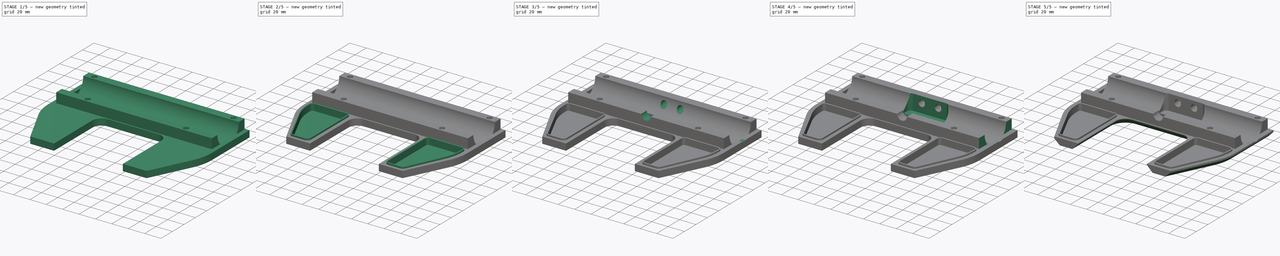
[diagram: build sequence overview — one tinted view per stage of 5, left to right]
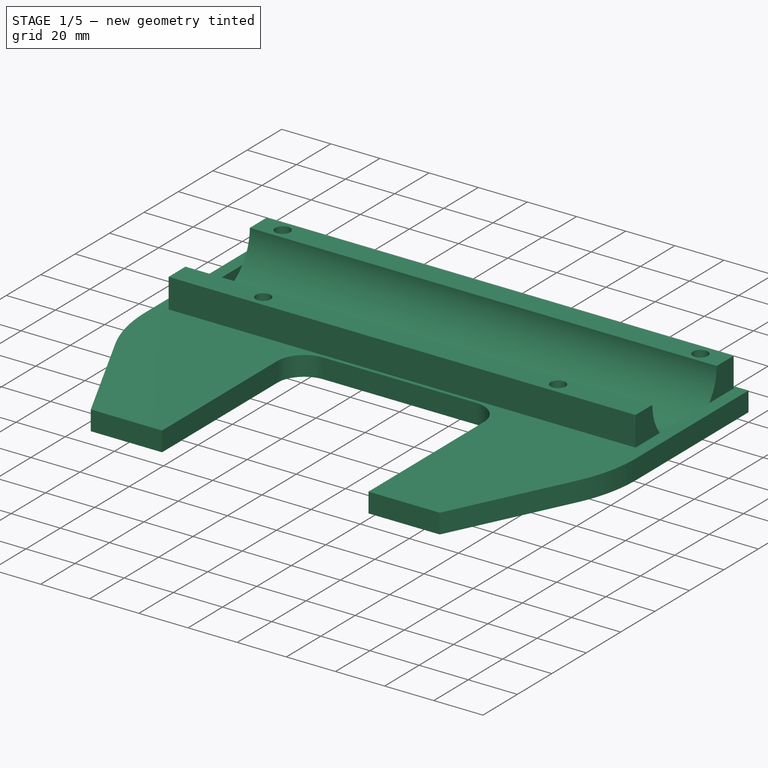
[diagram: stage 1 of 5 — iso view after this stage's code; geometry added in this stage tinted green]
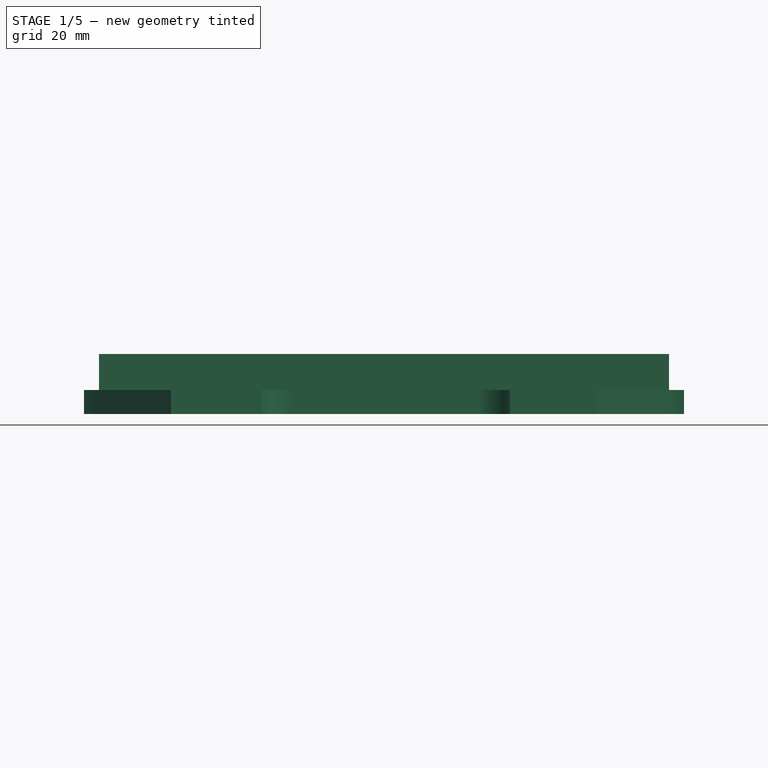
[diagram: stage 1 of 5 — front view after this stage's code; geometry added in this stage tinted green]
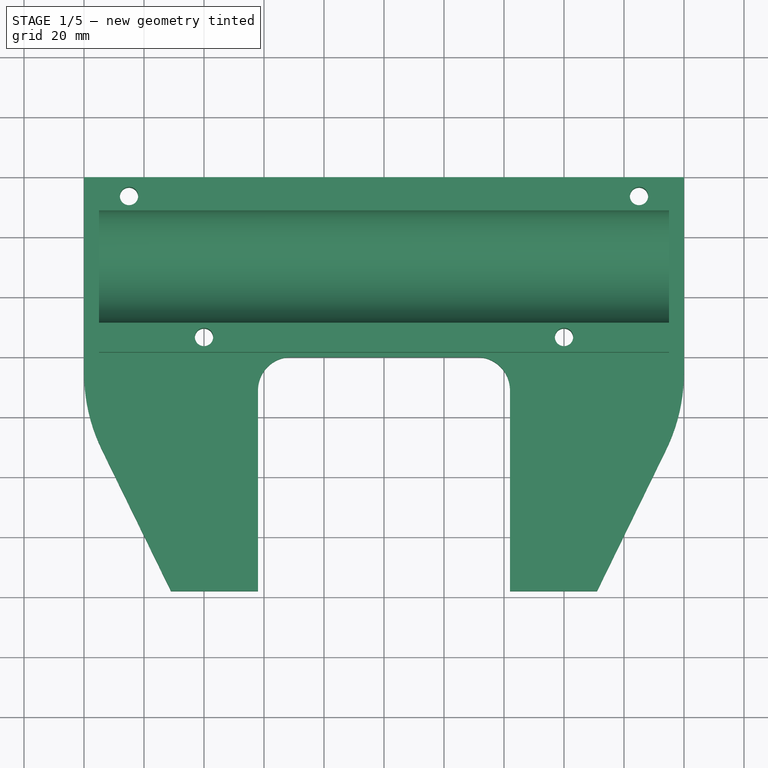
[diagram: stage 1 of 5 — top view after this stage's code; geometry added in this stage tinted green]
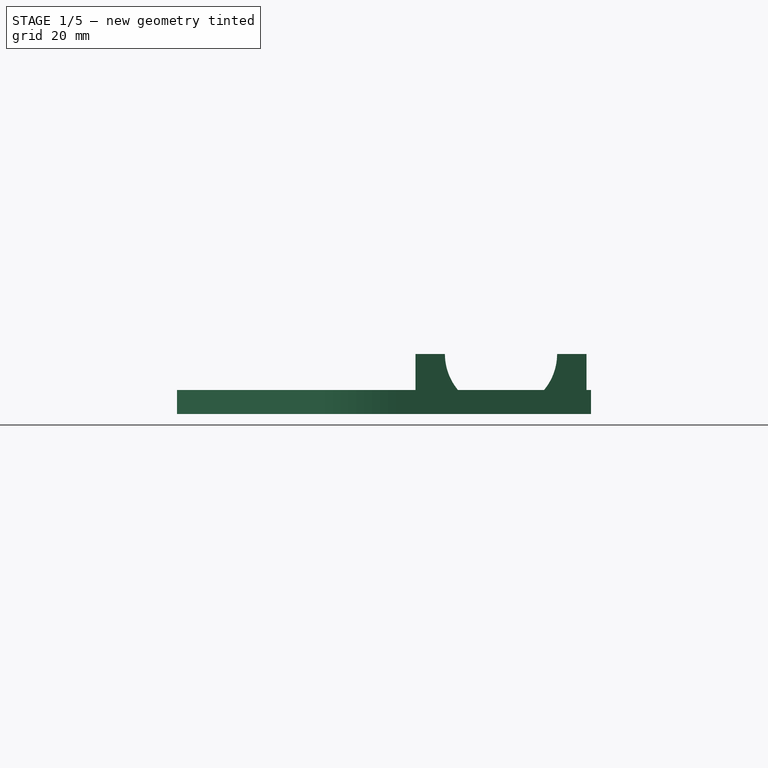
[diagram: stage 1 of 5 — right view after this stage's code; geometry added in this stage tinted green]
FCSTD DOCUMENT  (FreeCAD 0.20R)
Label: T07_motorcover
License: All rights reserved
LicenseURL: http://en.wikipedia.org/wiki/All_rights_reserved
objects: Sketcher::SketchObject×12, PartDesign::Pocket×9, PartDesign::Pad×3, PartDesign::Chamfer×3, PartDesign::Body×1
note: 43 computed .brp shape members not serialized (recipe doc carries the construction recipe); baked Part::Feature solids carry a one-line shape summary decoded from their .brp

FEATURE [Sketcher::SketchObject] Sketch055
  FullyConstrained = true
  MapMode = 5
  Placement = pos=(0,0,0) rot=(0.57735,0.57735,0.57735;2.0944rad)
  Support = -> [YZ_Plane025]
  sketch-geometry (6):
    g0: LineSegment StartX=38.5 StartY=17 StartZ=0 EndX=38.5 EndY=-3 EndZ=0
    g1: LineSegment StartX=38.5 StartY=-3 StartZ=0 EndX=-18.5 EndY=-3 EndZ=0
    g2: LineSegment StartX=-18.5 StartY=-3 StartZ=0 EndX=-18.5 EndY=17 EndZ=0
    g3: ArcOfCircle CenterX=10 CenterY=17 CenterZ=0 NormalX=0 NormalY=0 NormalZ=1 AngleXU=0 Radius=18.7 StartAngle=3.14159 EndAngle=6.28319
    g4: LineSegment StartX=38.5 StartY=17 StartZ=0 EndX=28.7 EndY=17 EndZ=0
    g5: LineSegment StartX=-18.5 StartY=17 StartZ=0 EndX=-8.7 EndY=17 EndZ=0
  constraints (19):
    c: Coincident(g0,g1)
    c: Coincident(g1,g2)
    c: Horizontal(g1)
    c: Vertical(g0)
    c: Vertical(g2)
    c: Distance(g1) = 57
    c: Distance(g2) = 20
    c: DistanceX(g1,g-1) = 18.5
    c: DistanceY(g1,g-1) = 3
    c: Coincident(g5,g3)
    c: Coincident(g5,g2)
    c: Coincident(g4,g3)
    c: Coincident(g0,g4)
    c: DistanceY(g3,g0) = 0
    c: DistanceY(g0,g0) = 20
    c: Parallel(g4,g1)
    c: Parallel(g5,g1)
    c: Distance(g4) = 9.8
    c: Distance(g5) = 9.8
FEATURE [PartDesign::Pad] Pad009
  AllowMultiFace = false
  Direction = (1,-2e-16,3e-16)
  Length = 190
  Length2 = 100
  Midplane = true
  Placement = pos=(0,0,0) rot=(0.57735,0.57735,0.57735;2.0944rad)
  Profile = -> Sketch055
  ReferenceAxis = -> Sketch055 [N_Axis]
  Type = 0
FEATURE [Sketcher::SketchObject] Sketch056
  FullyConstrained = true
  MapMode = 5
  Placement = pos=(8e-16,-1.3e-15,-3) rot=(0.707107,0.707107,0;3.14159rad)
  Support = -> [Pad009]
  sketch-geometry (4):
    g0: Circle CenterX=-13.5 CenterY=60 CenterZ=0 NormalX=0 NormalY=0 NormalZ=1 AngleXU=0 Radius=3.05
    g1: Circle CenterX=33.5 CenterY=85 CenterZ=0 NormalX=0 NormalY=0 NormalZ=1 AngleXU=0 Radius=3.05
    g2: Circle CenterX=-13.5 CenterY=-60 CenterZ=0 NormalX=0 NormalY=0 NormalZ=1 AngleXU=0 Radius=3.05
    g3: Circle CenterX=33.5 CenterY=-85 CenterZ=0 NormalX=0 NormalY=0 NormalZ=1 AngleXU=0 Radius=3.05
  constraints (10):
    c: DistanceX(g0,g1) = 47
    c: DistanceY(g0,g1) = 25
    c: DistanceY(g-1,g0) = 60
    c: DistanceX(g0,g-1) = 13.5
    c: Equal(g0,g1)
    c: Equal(g1,g3)
    c: Equal(g3,g2)
    c: Symmetric(g0,g2,g-1)
    c: Symmetric(g1,g3,g-1)
    c: Diameter(g1) = 6.1
FEATURE [Sketcher::SketchObject] Sketch
  FullyConstrained = true
  MapMode = 5
  Support = -> [XY_Plane025]
  sketch-geometry (18):
    g0: LineSegment StartX=-100 StartY=-25 StartZ=0 EndX=-100 EndY=40 EndZ=0
    g1: LineSegment StartX=-100 StartY=40 StartZ=0 EndX=100 EndY=40 EndZ=0
    g2: LineSegment StartX=100 StartY=40 StartZ=0 EndX=100 EndY=-25 EndZ=0
    g3: LineSegment StartX=-31 StartY=-20 StartZ=0 EndX=31 EndY=-20 EndZ=0
    g4: ArcOfCircle CenterX=-41 CenterY=-25 CenterZ=0 NormalX=0 NormalY=0 NormalZ=1 AngleXU=0 Radius=59 StartAngle=3.14159 EndAngle=3.59605
    g5: ArcOfCircle CenterX=41 CenterY=-25 CenterZ=0 NormalX=0 NormalY=0 NormalZ=1 AngleXU=0 Radius=59 StartAngle=5.82873 EndAngle=6.28319
    g6: ArcOfCircle CenterX=-31 CenterY=-31 CenterZ=0 NormalX=0 NormalY=0 NormalZ=1 AngleXU=0 Radius=11 StartAngle=1.5708 EndAngle=3.14159
    g7: ArcOfCircle CenterX=31 CenterY=-31 CenterZ=0 NormalX=0 NormalY=0 NormalZ=1 AngleXU=0 Radius=11 StartAngle=0 EndAngle=1.5708
    g8: LineSegment StartX=-94.0115 StartY=-50.8994 StartZ=0 EndX=-71 EndY=-98 EndZ=0
    g9: LineSegment StartX=-71 StartY=-98 StartZ=0 EndX=-42 EndY=-98 EndZ=0
    g10: LineSegment StartX=-42 StartY=-98 StartZ=0 EndX=-42 EndY=-31 EndZ=0
    g11: LineSegment StartX=94.0115 StartY=-50.8994 StartZ=0 EndX=71 EndY=-98 EndZ=0
    g12: LineSegment StartX=71 StartY=-98 StartZ=0 EndX=42 EndY=-98 EndZ=0
    g13: LineSegment StartX=42 StartY=-98 StartZ=0 EndX=42 EndY=-31 EndZ=0
    g14: LineSegment StartX=-95 StartY=38.5 StartZ=0 EndX=95 EndY=38.5 EndZ=0
    g15: LineSegment StartX=95 StartY=38.5 StartZ=0 EndX=95 EndY=-18.5 EndZ=0
    g16: LineSegment StartX=95 StartY=-18.5 StartZ=0 EndX=-95 EndY=-18.5 EndZ=0
    g17: LineSegment StartX=-95 StartY=-18.5 StartZ=0 EndX=-95 EndY=38.5 EndZ=0
  constraints (46):
    c: Vertical(g0)
    c: Coincident(g0,g1)
    c: Coincident(g1,g2)
    c: Coincident(g5,g2)
    c: Coincident(g7,g3)
    c: Tangent(g4,g8) = -1.5708
    c: Coincident(g8,g9)
    c: Coincident(g9,g10)
    c: Coincident(g11,g12)
    c: Coincident(g12,g13)
    c: Coincident(g13,g7)
    c: Tangent(g4,g0) = 1.5708
    c: Vertical(g10)
    c: Horizontal(g9)
    c: Tangent(g6,g3) = 1.5708
    c: Tangent(g10,g6) = 1.5708
    c: Symmetric(g12,g9,g-2)
    c: Symmetric(g8,g11,g-2)
    c: Symmetric(g0,g2,g-2)
    c: Symmetric(g4,g5,g-2)
    c: Symmetric(g6,g7,g-2)
    c: Symmetric(g3,g3,g-2)
    c: Symmetric(g1,g0,g-2)
    c: Equal(g4,g5)
    c: Equal(g6,g7)
    c: DistanceY(g9,g-1) = 98
    c: DistanceX(g0,g-1) = 100
    c: DistanceY(g-1,g0) = 40
    c: DistanceX(g6,g-1) = 42
    c: Radius(g6) = 11
    c: Radius(g4) = 59
    c: Coincident(g11,g5)
    c: DistanceY(g0,g-1) = 25
    c: DistanceY(g3,g-1) = 20
    c: DistanceX(g8,g-1) = 71
    c: Coincident(g14,g15)
    c: Coincident(g15,g16)
    c: Coincident(g16,g17)
    c: Coincident(g17,g14)
    c: Horizontal(g16)
    c: Vertical(g15)
    c: Vertical(g17)
    c: Symmetric(g14,g14,g-2)
    c: DistanceX(g14,g14) = 190
    c: DistanceY(g-1,g14) = 38.5
    c: DistanceY(g16,g14) = 57
FEATURE [PartDesign::Pad] Pad
  BaseFeature = -> Pad009
  Direction = (0,0,1)
  Length = 5
  Length2 = 3
  Placement = pos=(0,0,0) rot=(0.57735,0.57735,0.57735;2.0944rad)
  Profile = -> Sketch
  ReferenceAxis = -> Sketch [N_Axis]
  Type = 4
FEATURE [PartDesign::Pocket] Pocket043
  AllowMultiFace = false
  BaseFeature = -> Pad
  Direction = (-3e-16,4e-16,1)
  Length = 5
  Length2 = 100
  Placement = pos=(0,0,0) rot=(0.57735,0.57735,0.57735;2.0944rad)
  Profile = -> Sketch056
  ReferenceAxis = -> Sketch056 [N_Axis]
  Type = 1
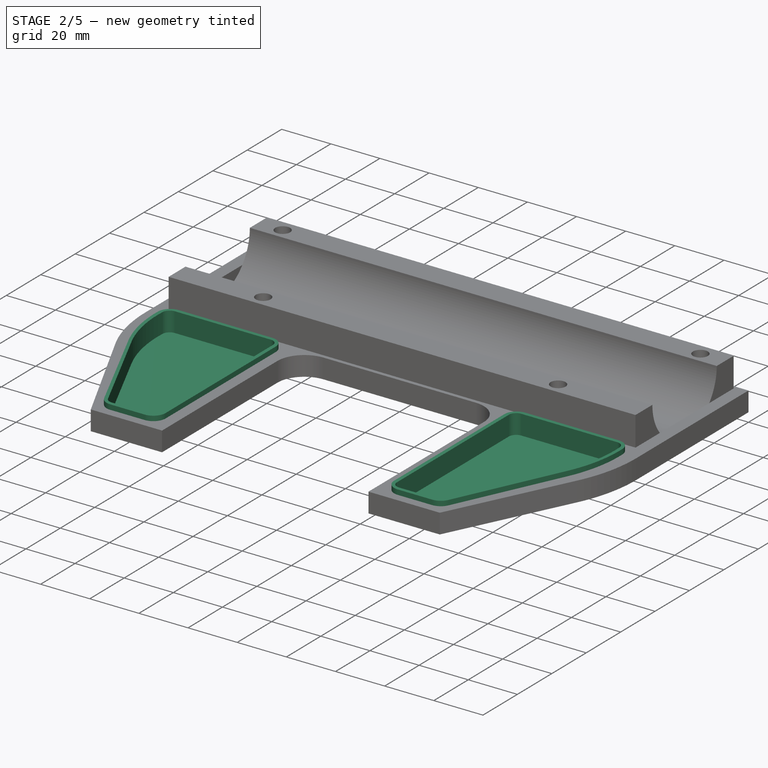
[diagram: stage 2 of 5 — iso view after this stage's code; geometry added in this stage tinted green]
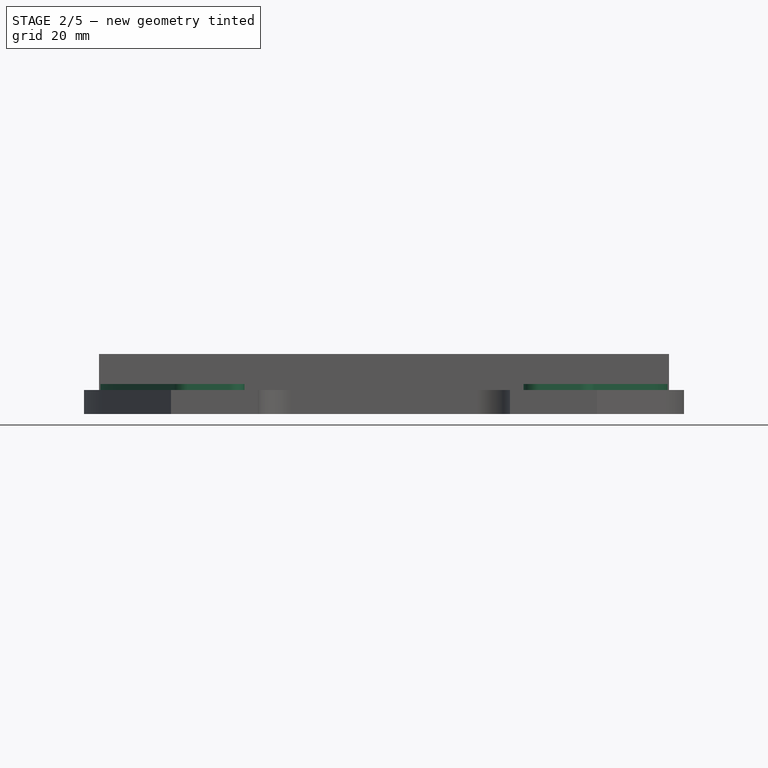
[diagram: stage 2 of 5 — front view after this stage's code; geometry added in this stage tinted green]
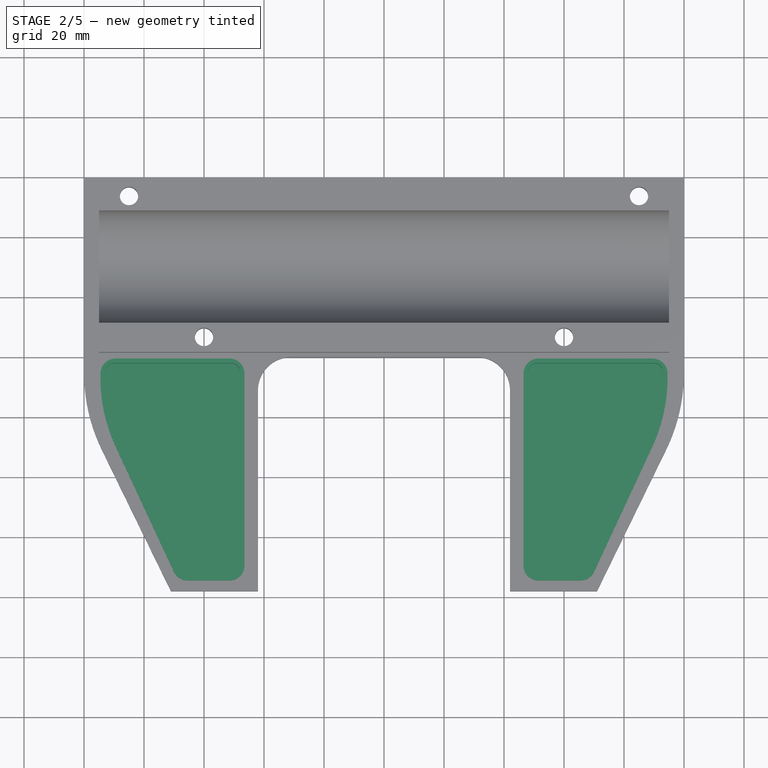
[diagram: stage 2 of 5 — top view after this stage's code; geometry added in this stage tinted green]
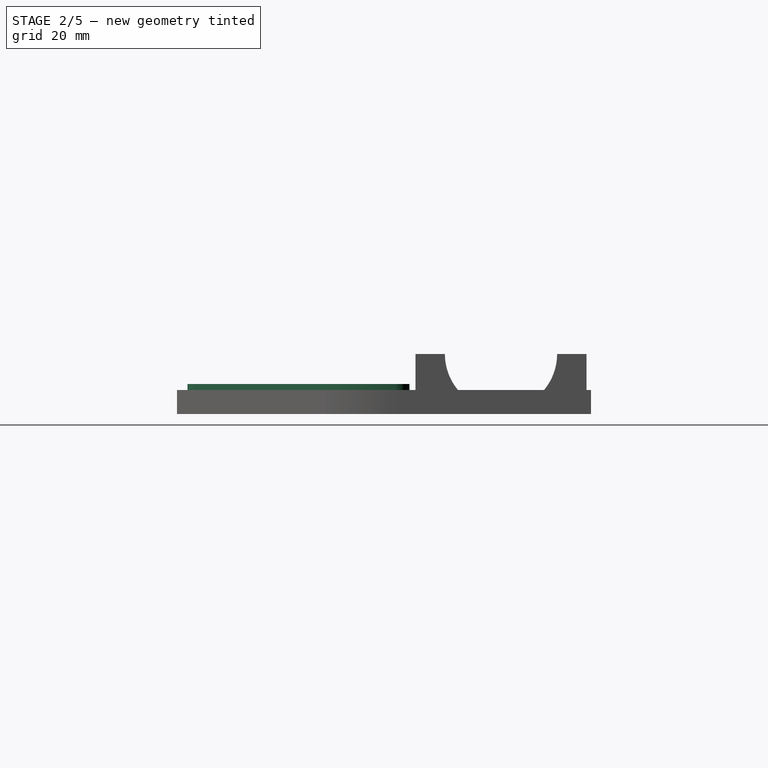
[diagram: stage 2 of 5 — right view after this stage's code; geometry added in this stage tinted green]
FEATURE [Sketcher::SketchObject] Sketch060
  FullyConstrained = true
  MapMode = 5
  Placement = pos=(8e-16,-1.7e-15,-3) rot=(0.707107,0.707107,0;3.14159rad)
  Support = -> [Pocket043]
  sketch-geometry (4):
    g0: Circle CenterX=-13.5 CenterY=60 CenterZ=0 NormalX=0 NormalY=0 NormalZ=1 AngleXU=0 Radius=6
    g1: Circle CenterX=33.5 CenterY=85 CenterZ=0 NormalX=0 NormalY=0 NormalZ=1 AngleXU=0 Radius=6
    g2: Circle CenterX=-13.5 CenterY=-60 CenterZ=0 NormalX=0 NormalY=0 NormalZ=1 AngleXU=0 Radius=6
    g3: Circle CenterX=33.5 CenterY=-85 CenterZ=0 NormalX=0 NormalY=0 NormalZ=1 AngleXU=0 Radius=6
  constraints (10):
    c: Symmetric(g0,g2,g-1)
    c: Symmetric(g1,g3,g-1)
    c: DistanceX(g0,g1) = 47
    c: DistanceX(g0,g-1) = 13.5
    c: DistanceY(g1,g0) = -25
    c: Equal(g0,g1)
    c: Equal(g0,g2)
    c: Equal(g2,g3)
    c: DistanceY(g-1,g0) = 60
    c: Diameter(g0) = 12
FEATURE [PartDesign::Pocket] Pocket
  BaseFeature = -> Pocket043
  Direction = (-3e-16,6e-16,1)
  Length = 5
  Length2 = 5
  Placement = pos=(0,0,0) rot=(0.57735,0.57735,0.57735;2.0944rad)
  Profile = -> Sketch060
  ReferenceAxis = -> Sketch060 [N_Axis]
  Type = 0
FEATURE [Sketcher::SketchObject] Sketch062
  FullyConstrained = true
  MapMode = 5
  Placement = pos=(0,1.1e-15,5) rot=(0,0,-1;1.5708rad)
  Support = -> [Pocket]
  sketch-geometry (18):
    g0: ArcOfCircle CenterX=25.5 CenterY=89.5017 CenterZ=0 NormalX=0 NormalY=0 NormalZ=1 AngleXU=0 Radius=5 StartAngle=1.59687 EndAngle=3.14159
    g1: ArcOfCircle CenterX=25.5 CenterY=51.5 CenterZ=0 NormalX=0 NormalY=0 NormalZ=1 AngleXU=0 Radius=5 StartAngle=3.14159 EndAngle=4.71239
    g2: ArcOfCircle CenterX=89.5 CenterY=51.5 CenterZ=0 NormalX=0 NormalY=0 NormalZ=1 AngleXU=0 Radius=5 StartAngle=4.71239 EndAngle=6.28319
    g3: ArcOfCircle CenterX=89.5 CenterY=65.5 CenterZ=0 NormalX=0 NormalY=0 NormalZ=1 AngleXU=0 Radius=5 StartAngle=-1.8e-15 EndAngle=1.13542
    g4: ArcOfCircle CenterX=26.8035 CenterY=39.5187 CenterZ=0 NormalX=0 NormalY=0 NormalZ=1 AngleXU=0 Radius=55 StartAngle=1.13542 EndAngle=1.59687
    g5: LineSegment StartX=20.5 StartY=51.5 StartZ=0 EndX=20.5 EndY=89.5017 EndZ=0
    g6: LineSegment StartX=50 StartY=89.3878 StartZ=0 EndX=91.6088 EndY=70.0336 EndZ=0
    g7: LineSegment StartX=94.5 StartY=65.5 StartZ=0 EndX=94.5 EndY=51.5 EndZ=0
    g8: LineSegment StartX=89.5 StartY=46.5 StartZ=0 EndX=25.5 EndY=46.5 EndZ=0
    g9: ArcOfCircle CenterX=25.5 CenterY=-89.5017 CenterZ=0 NormalX=0 NormalY=0 NormalZ=1 AngleXU=0 Radius=5 StartAngle=3.14159 EndAngle=4.68632
    g10: ArcOfCircle CenterX=26.8035 CenterY=-39.5187 CenterZ=0 NormalX=0 NormalY=0 NormalZ=1 AngleXU=0 Radius=55 StartAngle=4.68632 EndAngle=5.14777
    g11: ArcOfCircle CenterX=25.5 CenterY=-51.5 CenterZ=0 NormalX=0 NormalY=0 NormalZ=1 AngleXU=0 Radius=5 StartAngle=1.5708 EndAngle=3.14159
    g12: ArcOfCircle CenterX=89.5 CenterY=-65.5 CenterZ=0 NormalX=0 NormalY=0 NormalZ=1 AngleXU=0 Radius=5 StartAngle=5.14777 EndAngle=6.28319
    g13: ArcOfCircle CenterX=89.5 CenterY=-51.5 CenterZ=0 NormalX=0 NormalY=0 NormalZ=1 AngleXU=0 Radius=5 StartAngle=3e-16 EndAngle=1.5708
    g14: LineSegment StartX=20.5 StartY=-51.5 StartZ=0 EndX=20.5 EndY=-89.5017 EndZ=0
    g15: LineSegment StartX=50 StartY=-89.3878 StartZ=0 EndX=91.6088 EndY=-70.0336 EndZ=0
    g16: LineSegment StartX=94.5 StartY=-65.5 StartZ=0 EndX=94.5 EndY=-51.5 EndZ=0
    g17: LineSegment StartX=89.5 StartY=-46.5 StartZ=0 EndX=25.5 EndY=-46.5 EndZ=0
  constraints (42):
    c: Vertical(g5)
    c: Horizontal(g8)
    c: Tangent(g5,g0) = 1.5708
    c: Tangent(g5,g1) = 1.5708
    c: Tangent(g8,g1) = 1.5708
    c: Tangent(g8,g2) = 1.5708
    c: Tangent(g7,g2) = 1.5708
    c: Tangent(g7,g3) = 1.5708
    c: Tangent(g6,g3) = 1.5708
    c: Tangent(g4,g0) = -1.5708
    c: Tangent(g6,g4) = 1.5708
    c: Equal(g0,g1)
    c: Equal(g1,g2)
    c: Equal(g2,g3)
    c: Vertical(g7)
    c: Radius(g2) = 5
    c: Radius(g4) = 55
    c: DistanceY(g-1,g1) = 46.5
    c: DistanceY(g-1,g0) = 94.5
    c: DistanceY(g1,g3) = 19
    c: DistanceX(g-1,g3) = 94.5
    c: DistanceX(g-1,g1) = 20.5
    c: DistanceX(g-1,g4) = 50
    c: Horizontal(g17)
    c: Tangent(g17,g11) = -1.5708
    c: Tangent(g14,g11) = -1.5708
    c: Tangent(g17,g13) = -1.5708
    c: Tangent(g16,g13) = -1.5708
    c: Tangent(g16,g12) = -1.5708
    c: Tangent(g15,g12) = -1.5708
    c: Tangent(g14,g9) = -1.5708
    c: Tangent(g10,g9) = -1.5708
    c: Tangent(g15,g10) = -1.5708
    c: Equal(g11,g13)
    c: Equal(g13,g12)
    c: Equal(g11,g9)
    c: Equal(g10,g4)
    c: Equal(g11,g1)
    c: Symmetric(g11,g1,g-1)
    c: Symmetric(g13,g2,g-1)
    c: Symmetric(g3,g12,g-1)
    c: Symmetric(g9,g0,g-1)
FEATURE [PartDesign::Pad] Pad010
  BaseFeature = -> Pocket
  Direction = (0,2e-16,1)
  Length = 2
  Length2 = 10
  Placement = pos=(0,0,0) rot=(0.57735,0.57735,0.57735;2.0944rad)
  Profile = -> Sketch062
  ReferenceAxis = -> Sketch062 [N_Axis]
  Type = 0
FEATURE [Sketcher::SketchObject] Sketch063
  FullyConstrained = true
  MapMode = 5
  Placement = pos=(0,2.3e-15,7) rot=(0,0,-1;1.5708rad)
  Support = -> [Pad010]
  sketch-geometry (18):
    g0: ArcOfCircle CenterX=25 CenterY=90.0038 CenterZ=0 NormalX=0 NormalY=0 NormalZ=1 AngleXU=0 Radius=3 StartAngle=1.62101 EndAngle=3.14159
    g1: ArcOfCircle CenterX=25 CenterY=51 CenterZ=0 NormalX=0 NormalY=0 NormalZ=1 AngleXU=0 Radius=3 StartAngle=3.14159 EndAngle=4.71239
    g2: ArcOfCircle CenterX=90 CenterY=51 CenterZ=0 NormalX=0 NormalY=0 NormalZ=1 AngleXU=0 Radius=3 StartAngle=4.71239 EndAngle=6.28319
    g3: ArcOfCircle CenterX=90 CenterY=66 CenterZ=0 NormalX=0 NormalY=0 NormalZ=1 AngleXU=0 Radius=3 StartAngle=-1.359e-13 EndAngle=1.13256
    g4: ArcOfCircle CenterX=27.5097 CenterY=40.0668 CenterZ=0 NormalX=0 NormalY=0 NormalZ=1 AngleXU=0 Radius=53 StartAngle=1.13256 EndAngle=1.62101
    g5: LineSegment StartX=22 StartY=90.0038 StartZ=0 EndX=22 EndY=51 EndZ=0
    g6: LineSegment StartX=25 StartY=48 StartZ=0 EndX=90 EndY=48 EndZ=0
    g7: LineSegment StartX=93 StartY=51 StartZ=0 EndX=93 EndY=66 EndZ=0
    g8: LineSegment StartX=91.273 StartY=68.7165 StartZ=0 EndX=50 EndY=88.0583 EndZ=0
    g9: ArcOfCircle CenterX=25 CenterY=-51 CenterZ=0 NormalX=0 NormalY=0 NormalZ=1 AngleXU=0 Radius=3 StartAngle=1.5708 EndAngle=3.14159
    g10: ArcOfCircle CenterX=25 CenterY=-90.0038 CenterZ=0 NormalX=0 NormalY=0 NormalZ=1 AngleXU=0 Radius=3 StartAngle=3.14159 EndAngle=4.66217
    g11: ArcOfCircle CenterX=27.5097 CenterY=-40.0668 CenterZ=0 NormalX=0 NormalY=0 NormalZ=1 AngleXU=0 Radius=53 StartAngle=4.66217 EndAngle=5.15063
    g12: ArcOfCircle CenterX=90 CenterY=-66 CenterZ=0 NormalX=0 NormalY=0 NormalZ=1 AngleXU=0 Radius=3 StartAngle=5.15063 EndAngle=6.28319
    g13: ArcOfCircle CenterX=90 CenterY=-51 CenterZ=0 NormalX=0 NormalY=0 NormalZ=1 AngleXU=0 Radius=3 StartAngle=1e-16 EndAngle=1.5708
    g14: LineSegment StartX=22 StartY=-51 StartZ=0 EndX=22 EndY=-90.0038 EndZ=0
    g15: LineSegment StartX=50 StartY=-88.0583 StartZ=0 EndX=91.273 EndY=-68.7165 EndZ=0
    g16: LineSegment StartX=93 StartY=-66 StartZ=0 EndX=93 EndY=-51 EndZ=0
    g17: LineSegment StartX=90 StartY=-48 StartZ=0 EndX=25 EndY=-48 EndZ=0
  constraints (43):
    c: Vertical(g5)
    c: Horizontal(g6)
    c: Tangent(g6,g1) = -1.5708
    c: Tangent(g5,g1) = -1.5708
    c: Tangent(g5,g0) = -1.5708
    c: Tangent(g4,g0) = -1.5708
    c: Tangent(g8,g4) = -1.5708
    c: Tangent(g8,g3) = -1.5708
    c: Tangent(g7,g3) = -1.5708
    c: Tangent(g7,g2) = -1.5708
    c: Tangent(g6,g2) = -1.5708
    c: Vertical(g7)
    c: Equal(g0,g1)
    c: Equal(g1,g2)
    c: Equal(g2,g3)
    c: Radius(g1) = 3
    c: Radius(g4) = 53
    c: DistanceY(g-1,g1) = 48
    c: DistanceY(g2,g3) = 18
    c: DistanceY(g-1,g0) = 93
    c: DistanceX(g-1,g2) = 93
    c: DistanceX(g-1,g1) = 22
    c: DistanceX(g-1,g4) = 50
    c: Vertical(g14)
    c: Horizontal(g17)
    c: Vertical(g16)
    c: Tangent(g17,g9) = -1.5708
    c: Tangent(g14,g9) = -1.5708
    c: Tangent(g17,g13) = -1.5708
    c: Tangent(g16,g13) = -1.5708
    c: Tangent(g16,g12) = -1.5708
    c: Tangent(g15,g12) = -1.5708
    c: Tangent(g14,g10) = -1.5708
    c: Tangent(g11,g10) = -1.5708
    c: Tangent(g15,g11) = -1.5708
    c: Equal(g9,g10)
    c: Equal(g9,g13)
    c: Equal(g13,g12)
    c: Equal(g9,g1)
    c: Equal(g11,g4)
    c: Symmetric(g1,g9,g-1)
    c: Symmetric(g11,g4,g-1)
    c: Symmetric(g12,g3,g-1)
FEATURE [PartDesign::Pocket] Pocket044
  BaseFeature = -> Pad010
  Direction = (0,-3e-16,-1)
  Length = 8
  Length2 = 5
  Placement = pos=(0,0,0) rot=(0.57735,0.57735,0.57735;2.0944rad)
  Profile = -> Sketch063
  ReferenceAxis = -> Sketch063 [N_Axis]
  Type = 0
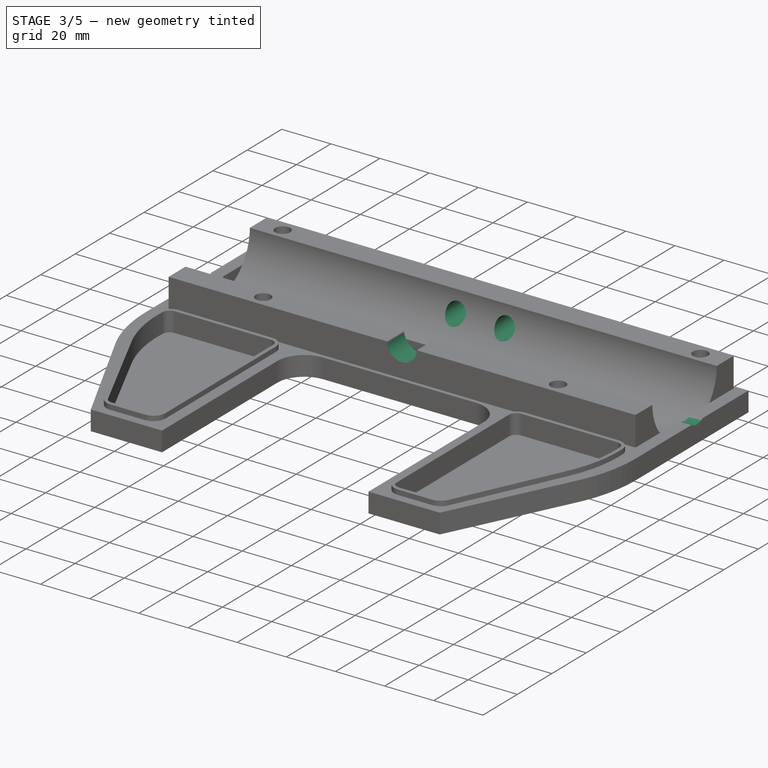
[diagram: stage 3 of 5 — iso view after this stage's code; geometry added in this stage tinted green]
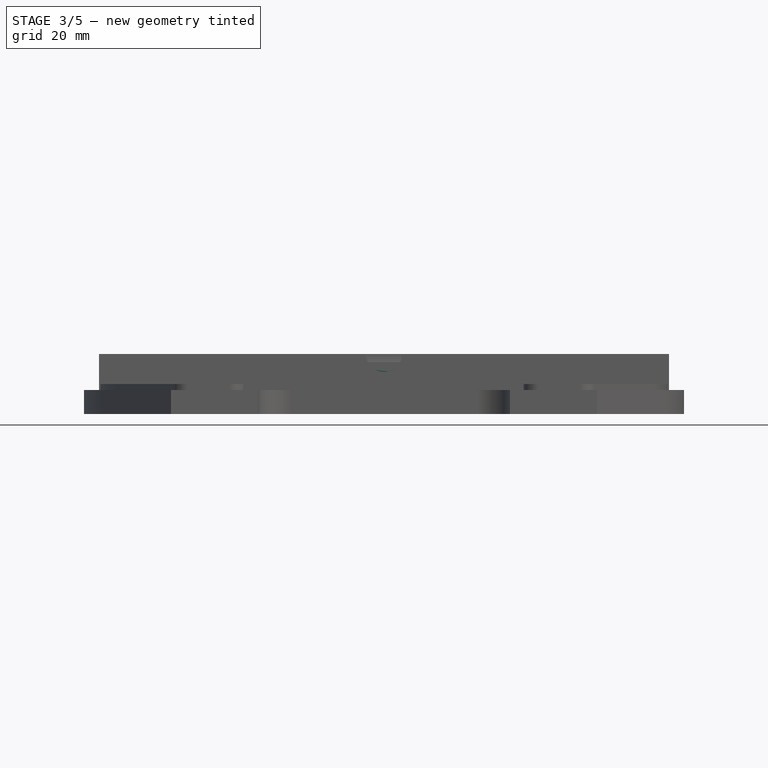
[diagram: stage 3 of 5 — front view after this stage's code; geometry added in this stage tinted green]
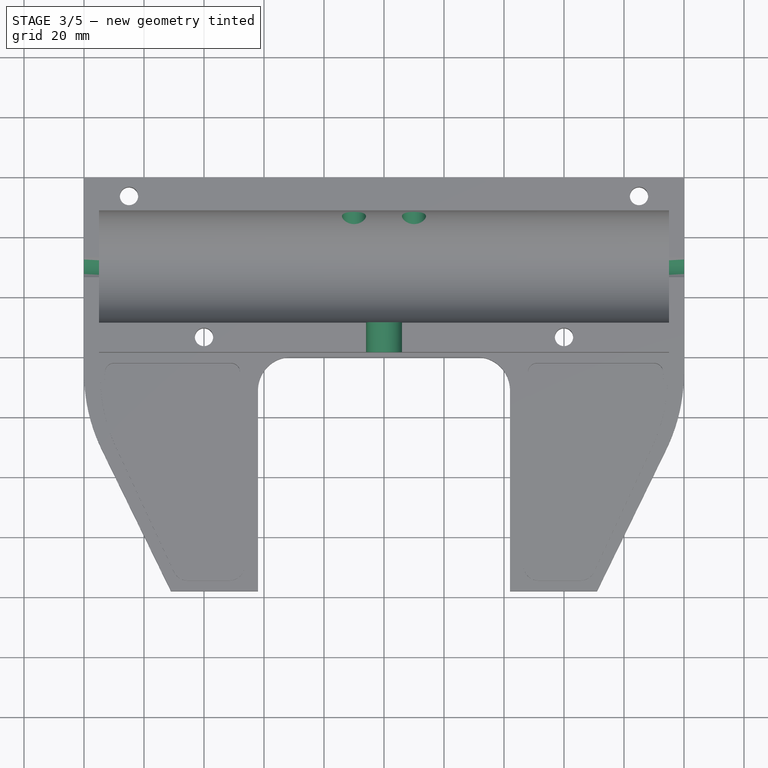
[diagram: stage 3 of 5 — top view after this stage's code; geometry added in this stage tinted green]
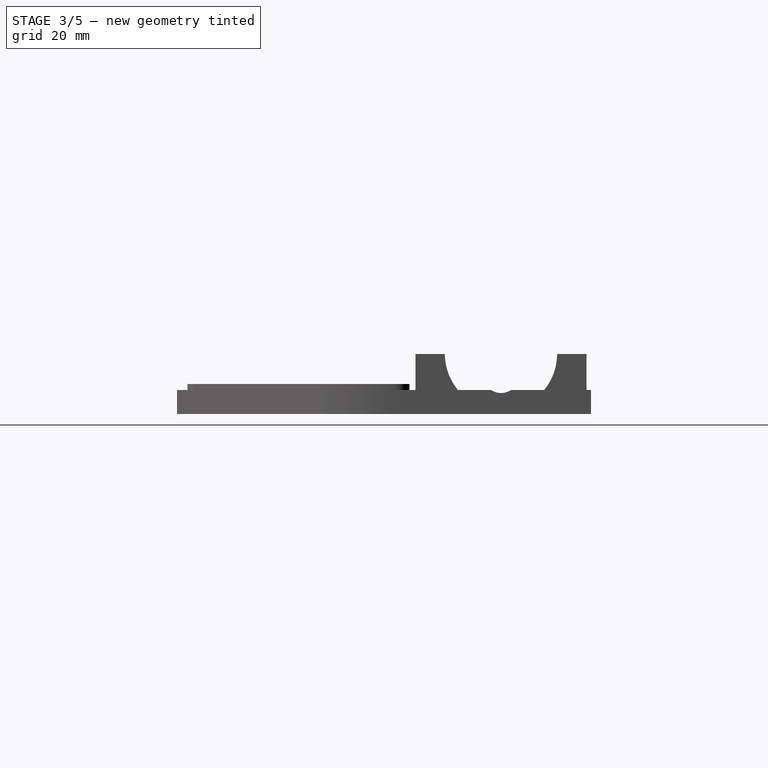
[diagram: stage 3 of 5 — right view after this stage's code; geometry added in this stage tinted green]
FEATURE [Sketcher::SketchObject] Sketch064
  FullyConstrained = true
  MapMode = 5
  Placement = pos=(-1.64e-14,-18.5,4.1e-15) rot=(-0.57735,-0.57735,0.57735;4.18879rad)
  Support = -> [Pocket044]
  sketch-geometry (2):
    g0: ArcOfCircle CenterX=-17 CenterY=0 CenterZ=0 NormalX=0 NormalY=0 NormalZ=1 AngleXU=0 Radius=6 StartAngle=4.71239 EndAngle=7.85398
    g1: LineSegment StartX=-17 StartY=6 StartZ=0 EndX=-17 EndY=-6 EndZ=0
  constraints (7):
    c: PointOnObject(g0,g-1)
    c: Coincident(g1,g0)
    c: Coincident(g1,g0)
    c: Vertical(g1)
    c: PointOnObject(g0,g1)
    c: DistanceX(g0,g-1) = 17
    c: Diameter(g0) = 12
FEATURE [PartDesign::Pocket] Pocket045
  BaseFeature = -> Pocket044
  Direction = (8e-16,1,-1e-16)
  Length = 10
  Length2 = 5
  Placement = pos=(0,0,0) rot=(0.57735,0.57735,0.57735;2.0944rad)
  Profile = -> Sketch064
  ReferenceAxis = -> Sketch064 [N_Axis]
  Type = 0
FEATURE [Sketcher::SketchObject] Sketch065
  FullyConstrained = true
  MapMode = 5
  Placement = pos=(3.83e-14,38.5,-8.5e-15) rot=(0.57735,0.57735,0.57735;4.18879rad)
  Support = -> [Pocket045]
  sketch-geometry (2):
    g0: Circle CenterX=9 CenterY=10 CenterZ=0 NormalX=0 NormalY=0 NormalZ=1 AngleXU=0 Radius=4
    g1: Circle CenterX=9 CenterY=-10 CenterZ=0 NormalX=0 NormalY=0 NormalZ=1 AngleXU=0 Radius=4
  constraints (5):
    c: Symmetric(g1,g0,g-1)
    c: Equal(g0,g1)
    c: DistanceY(g1,g0) = 20
    c: Diameter(g0) = 8
    c: DistanceX(g-1,g0) = 9
FEATURE [PartDesign::Pocket] Pocket046
  BaseFeature = -> Pocket045
  Direction = (-8e-16,-1,1e-16)
  Length = 20
  Length2 = 5
  Placement = pos=(0,0,0) rot=(0.57735,0.57735,0.57735;2.0944rad)
  Profile = -> Sketch065
  ReferenceAxis = -> Sketch065 [N_Axis]
  Type = 0
FEATURE [Sketcher::SketchObject] Sketch066
  FullyConstrained = true
  MapMode = 5
  Placement = pos=(0,0,0) rot=(0.57735,0.57735,0.57735;2.0944rad)
  Support = -> [YZ_Plane025]
  sketch-geometry (1):
    g0: Circle CenterX=10 CenterY=10 CenterZ=0 NormalX=0 NormalY=0 NormalZ=1 AngleXU=0 Radius=6
  constraints (3):
    c: Diameter(g0) = 12
    c: DistanceX(g-1,g0) = 10
    c: DistanceY(g-1,g0) = 10
FEATURE [PartDesign::Pocket] Pocket047
  BaseFeature = -> Pocket046
  Direction = (-1,2e-16,-3e-16)
  Length = 5
  Length2 = 5
  Midplane = true
  Placement = pos=(0,0,0) rot=(0.57735,0.57735,0.57735;2.0944rad)
  Profile = -> Sketch066
  ReferenceAxis = -> Sketch066 [N_Axis]
  Type = 1
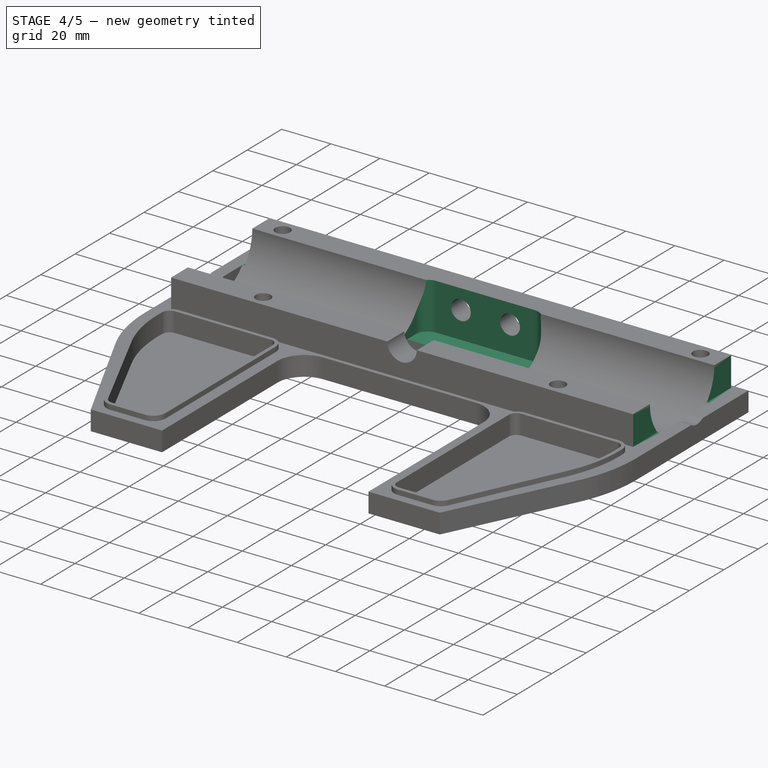
[diagram: stage 4 of 5 — iso view after this stage's code; geometry added in this stage tinted green]
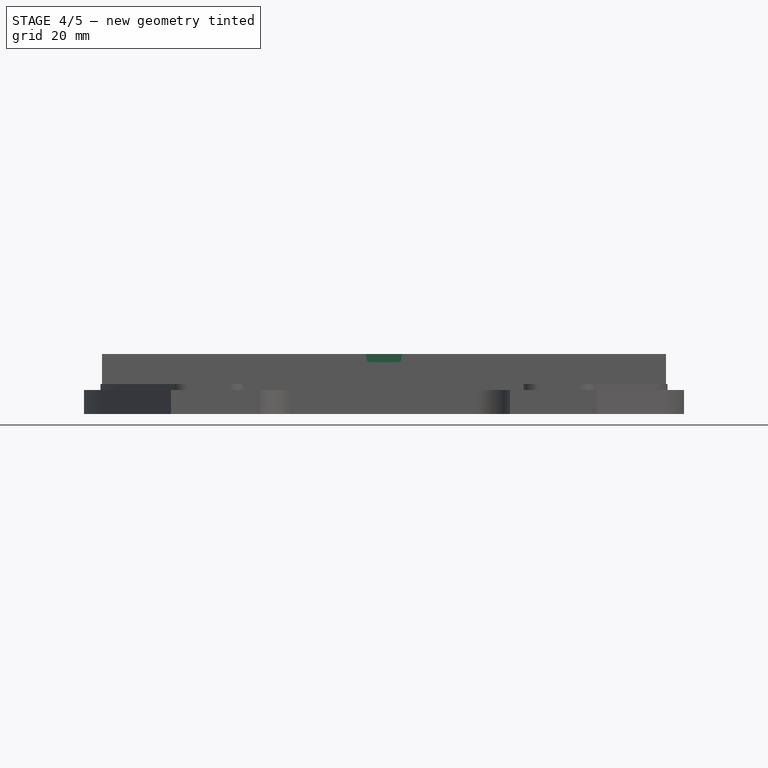
[diagram: stage 4 of 5 — front view after this stage's code; geometry added in this stage tinted green]
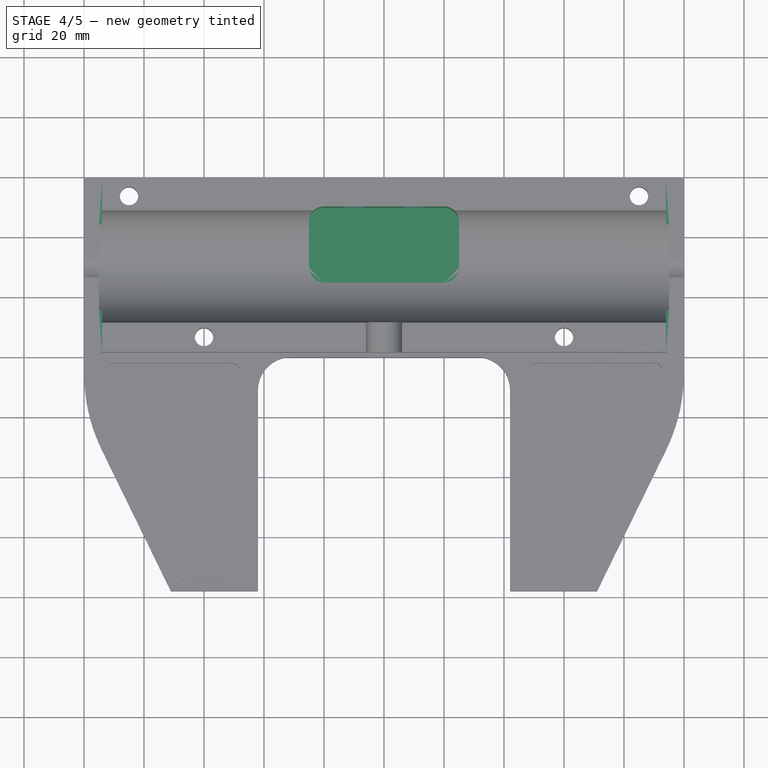
[diagram: stage 4 of 5 — top view after this stage's code; geometry added in this stage tinted green]
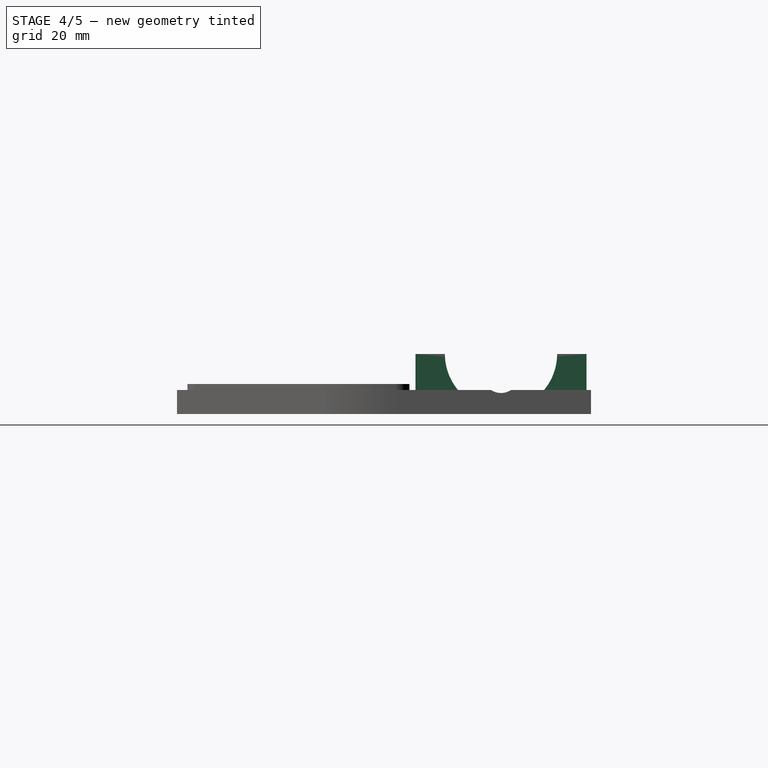
[diagram: stage 4 of 5 — right view after this stage's code; geometry added in this stage tinted green]
FEATURE [Sketcher::SketchObject] Sketch067
  FullyConstrained = true
  MapMode = 5
  Placement = pos=(-4.8e-15,1.46e-14,17) rot=(0,0,-1;1.5708rad)
  Support = -> [Pocket047]
  sketch-geometry (8):
    g0: ArcOfCircle CenterX=-25 CenterY=20 CenterZ=0 NormalX=0 NormalY=0 NormalZ=1 AngleXU=0 Radius=5 StartAngle=1.5708 EndAngle=3.14159
    g1: ArcOfCircle CenterX=-25 CenterY=-20 CenterZ=0 NormalX=0 NormalY=0 NormalZ=1 AngleXU=0 Radius=5 StartAngle=3.14159 EndAngle=4.71239
    g2: ArcOfCircle CenterX=-10 CenterY=-20 CenterZ=0 NormalX=0 NormalY=0 NormalZ=1 AngleXU=0 Radius=5 StartAngle=4.71239 EndAngle=6.28319
    g3: ArcOfCircle CenterX=-10 CenterY=20 CenterZ=0 NormalX=0 NormalY=0 NormalZ=1 AngleXU=0 Radius=5 StartAngle=0 EndAngle=1.5708
    g4: LineSegment StartX=-25 StartY=25 StartZ=0 EndX=-10 EndY=25 EndZ=0
    g5: LineSegment StartX=-25 StartY=-25 StartZ=0 EndX=-10 EndY=-25 EndZ=0
    g6: LineSegment StartX=-30 StartY=-20 StartZ=0 EndX=-30 EndY=20 EndZ=0
    g7: LineSegment StartX=-5 StartY=20 StartZ=0 EndX=-5 EndY=-20 EndZ=0
  constraints (20):
    c: Horizontal(g5)
    c: Coincident(g6,g1)
    c: Coincident(g7,g2)
    c: Equal(g0,g3)
    c: Equal(g0,g1)
    c: Equal(g1,g2)
    c: Tangent(g4,g0) = 1.5708
    c: Tangent(g6,g0) = 1.5708
    c: Tangent(g4,g3) = 1.5708
    c: Tangent(g7,g3) = 1.5708
    c: Symmetric(g1,g0,g-1)
    c: Symmetric(g3,g2,g-1)
    c: Vertical(g6)
    c: Vertical(g7)
    c: DistanceX(g3,g-1) = 5
    c: DistanceX(g0,g-1) = 30
    c: DistanceY(g1,g0) = 50
    c: Tangent(g5,g1) = -1.5708
    c: Tangent(g5,g2) = -1.5708
    c: Radius(g0) = 5
FEATURE [PartDesign::Pocket] Pocket048
  BaseFeature = -> Pocket047
  Direction = (3e-16,-9e-16,-1)
  Length = 19
  Length2 = 5
  Placement = pos=(0,0,0) rot=(0.57735,0.57735,0.57735;2.0944rad)
  Profile = -> Sketch067
  ReferenceAxis = -> Sketch067 [N_Axis]
  Type = 0
FEATURE [Sketcher::SketchObject] Sketch068
  FullyConstrained = true
  MapMode = 5
  Placement = pos=(95,-2.09e-14,1.053e-13) rot=(0.57735,0.57735,0.57735;2.0944rad)
  Support = -> [Pocket048]
  sketch-geometry (4):
    g0: LineSegment StartX=-19 StartY=17 StartZ=0 EndX=39 EndY=17 EndZ=0
    g1: LineSegment StartX=39 StartY=17 StartZ=0 EndX=39 EndY=5 EndZ=0
    g2: LineSegment StartX=39 StartY=5 StartZ=0 EndX=-19 EndY=5 EndZ=0
    g3: LineSegment StartX=-19 StartY=5 StartZ=0 EndX=-19 EndY=17 EndZ=0
  constraints (12):
    c: Coincident(g0,g1)
    c: Coincident(g1,g2)
    c: Coincident(g2,g3)
    c: Coincident(g3,g0)
    c: Horizontal(g0)
    c: Horizontal(g2)
    c: Vertical(g1)
    c: Vertical(g3)
    c: DistanceY(g-1,g2) = 5
    c: DistanceY(g2,g0) = 12
    c: DistanceX(g2,g-1) = 19
    c: DistanceX(g2,g1) = 58
FEATURE [PartDesign::Pocket] Pocket049
  BaseFeature = -> Pocket048
  Direction = (-1,2e-16,-1.1e-15)
  Length = 1
  Length2 = 5
  Placement = pos=(0,0,0) rot=(0.57735,0.57735,0.57735;2.0944rad)
  Profile = -> Sketch068
  ReferenceAxis = -> Sketch068 [N_Axis]
  Type = 0
FEATURE [Sketcher::SketchObject] Sketch069
  FullyConstrained = true
  MapMode = 5
  Placement = pos=(-95,2.09e-14,-1.158e-13) rot=(0.57735,0.57735,-0.57735;4.18879rad)
  Support = -> [Pocket049]
  sketch-geometry (4):
    g0: LineSegment StartX=-19 StartY=-5 StartZ=0 EndX=39 EndY=-5 EndZ=0
    g1: LineSegment StartX=39 StartY=-5 StartZ=0 EndX=39 EndY=-17 EndZ=0
    g2: LineSegment StartX=39 StartY=-17 StartZ=0 EndX=-19 EndY=-17 EndZ=0
    g3: LineSegment StartX=-19 StartY=-17 StartZ=0 EndX=-19 EndY=-5 EndZ=0
  constraints (12):
    c: Coincident(g0,g1)
    c: Coincident(g1,g2)
    c: Coincident(g2,g3)
    c: Coincident(g3,g0)
    c: Horizontal(g0)
    c: Horizontal(g2)
    c: Vertical(g1)
    c: Vertical(g3)
    c: DistanceY(g0,g-1) = 5
    c: DistanceY(g2,g0) = 12
    c: DistanceX(g0,g-1) = 19
    c: DistanceX(g0,g0) = 58
FEATURE [PartDesign::Pocket] Pocket050
  BaseFeature = -> Pocket049
  Direction = (1,-2e-16,1.1e-15)
  Length = 1
  Length2 = 5
  Placement = pos=(0,0,0) rot=(0.57735,0.57735,0.57735;2.0944rad)
  Profile = -> Sketch069
  ReferenceAxis = -> Sketch069 [N_Axis]
  Type = 0
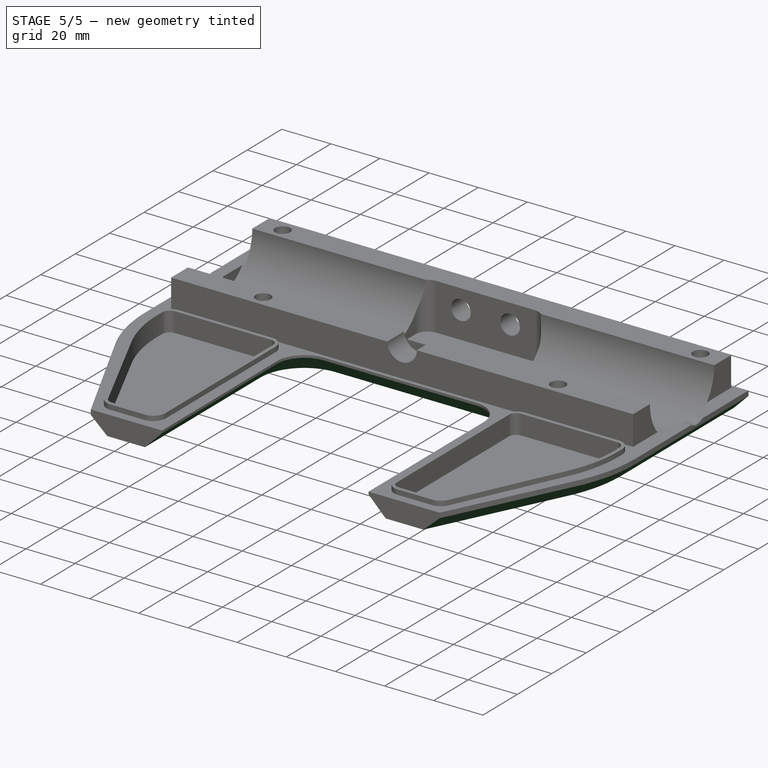
[diagram: stage 5 of 5 — iso view after this stage's code; geometry added in this stage tinted green]
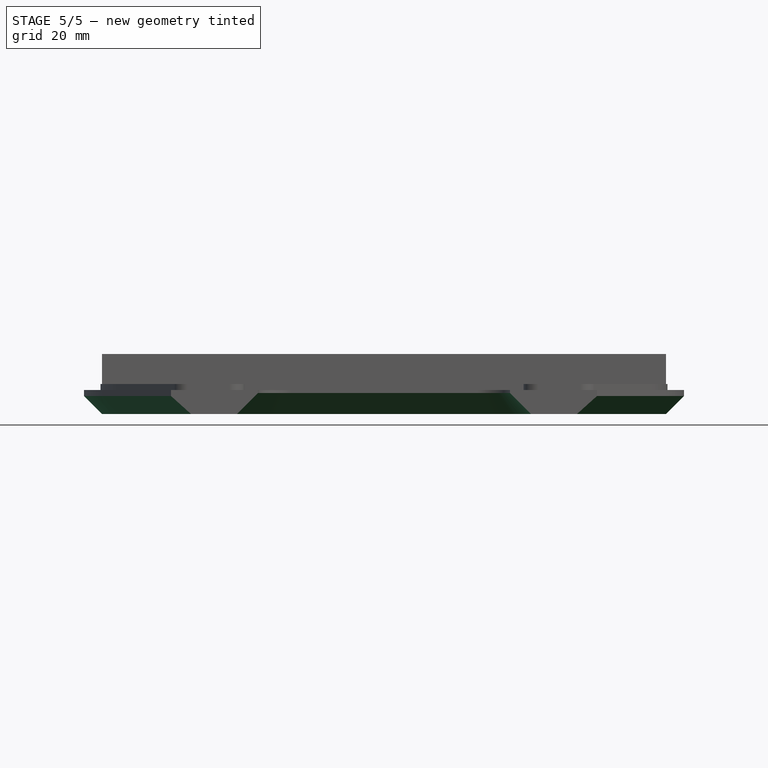
[diagram: stage 5 of 5 — front view after this stage's code; geometry added in this stage tinted green]
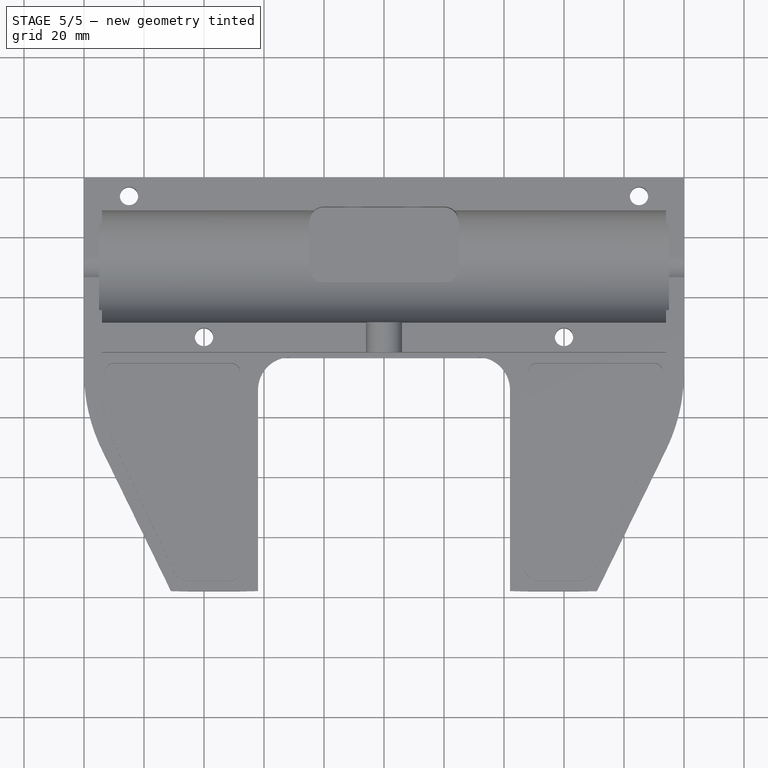
[diagram: stage 5 of 5 — top view after this stage's code; geometry added in this stage tinted green]
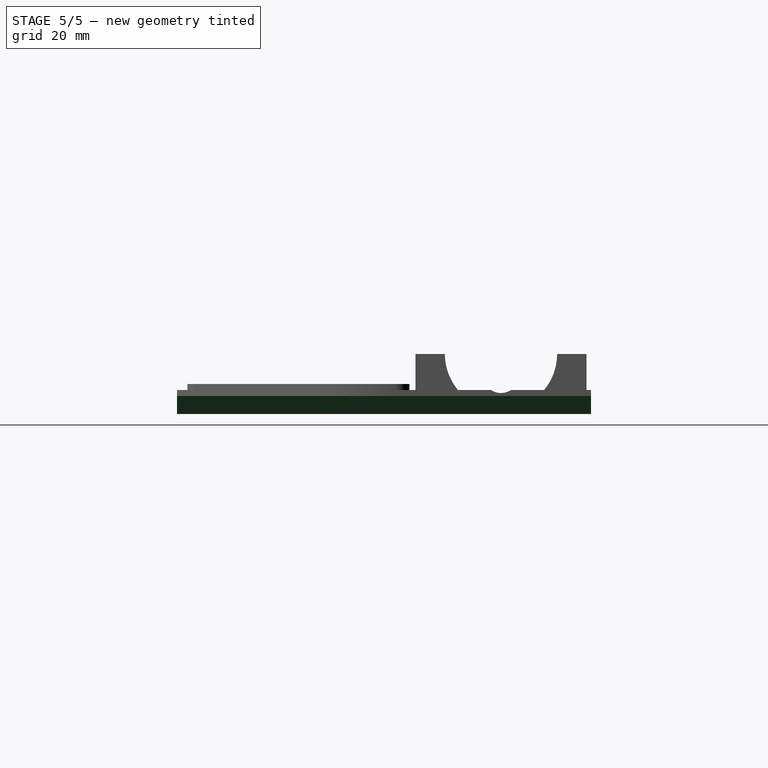
[diagram: stage 5 of 5 — right view after this stage's code; geometry added in this stage tinted green]
FEATURE [PartDesign::Chamfer] Chamfer
  Angle = 45
  Base = -> Pocket050 [Edge22,Edge73,Edge74]
  BaseFeature = -> Pocket050
  ChamferType = 0
  FlipDirection = false
  Placement = pos=(0,0,0) rot=(0.57735,0.57735,0.57735;2.0944rad)
  Size = 6
  Size2 = 4
  SupportTransform = false
  UseAllEdges = false
FEATURE [PartDesign::Chamfer] Chamfer001
  Angle = 45
  Base = -> Chamfer [Edge81,Edge83,Edge85]
  BaseFeature = -> Chamfer
  ChamferType = 0
  FlipDirection = false
  Placement = pos=(0,0,0) rot=(0.57735,0.57735,0.57735;2.0944rad)
  Size = 6
  Size2 = 1
  SupportTransform = false
  UseAllEdges = false
FEATURE [PartDesign::Chamfer] Chamfer002
  Angle = 45
  Base = -> Chamfer001 [Edge139]
  BaseFeature = -> Chamfer001
  ChamferType = 0
  FlipDirection = false
  Placement = pos=(0,0,0) rot=(0.57735,0.57735,0.57735;2.0944rad)
  Size = 7
  Size2 = 1
  SupportTransform = false
  UseAllEdges = false
FEATURE [PartDesign::Body] Body010  label="motorcover"
  Group = -> [Sketch055,Pad009,Pad,Sketch056,Pocket043,Sketch060,Sketch,Pocket,Sketch062,Pad010,Sketch063,Pocket044,Sketch064,Pocket045,Sketch065,Pocket046,Sketch066,Pocket047,Sketch067,Pocket048,Sketch068,Pocket049,Sketch069,Pocket050,Chamfer,Chamfer001,Chamfer002]
  Origin = -> Origin025
  Tip = -> Chamfer002
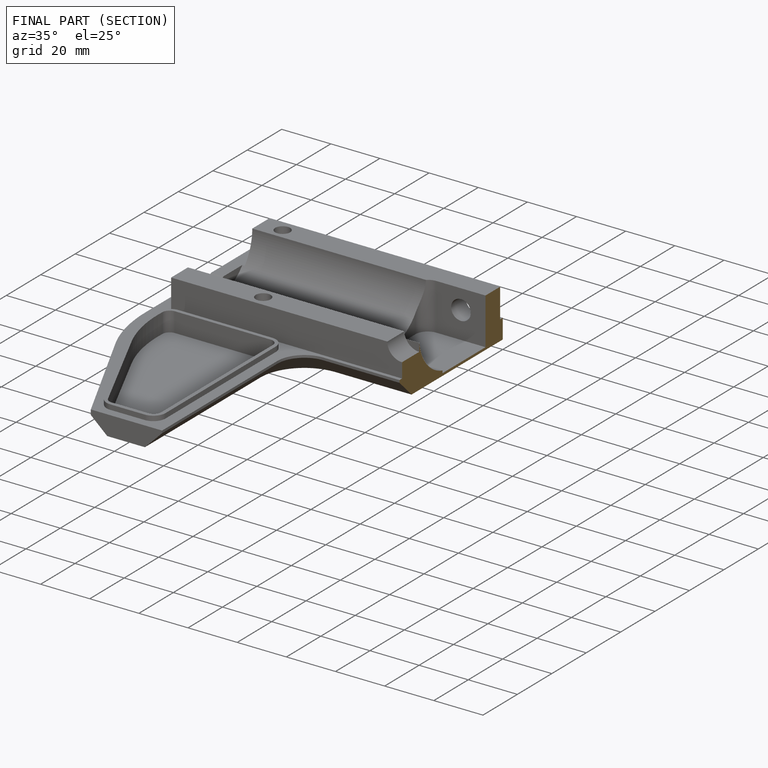
[diagram: finished part — half-section view (interior)]
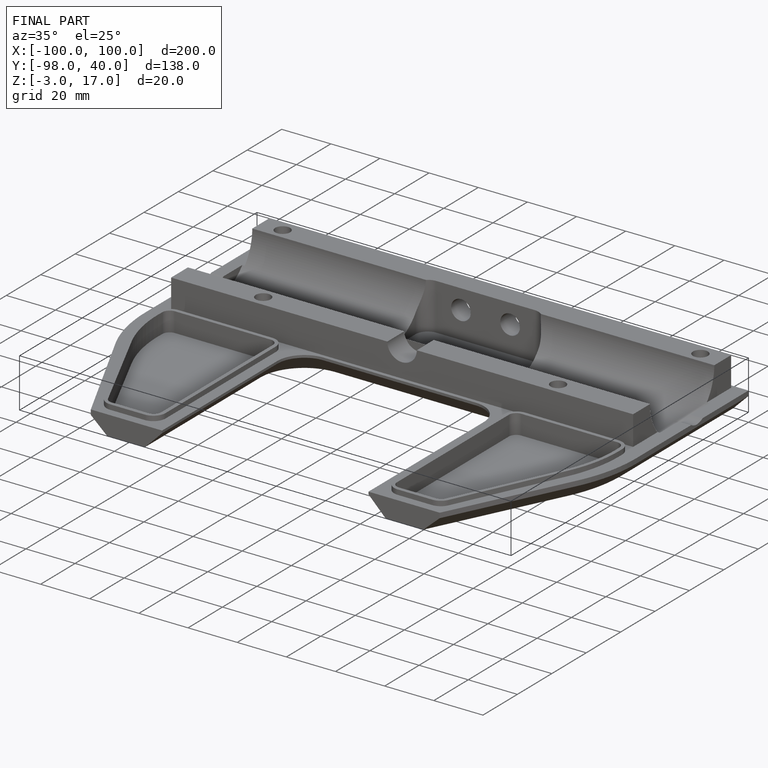
[diagram: finished part — iso view with bounding-box wireframe]
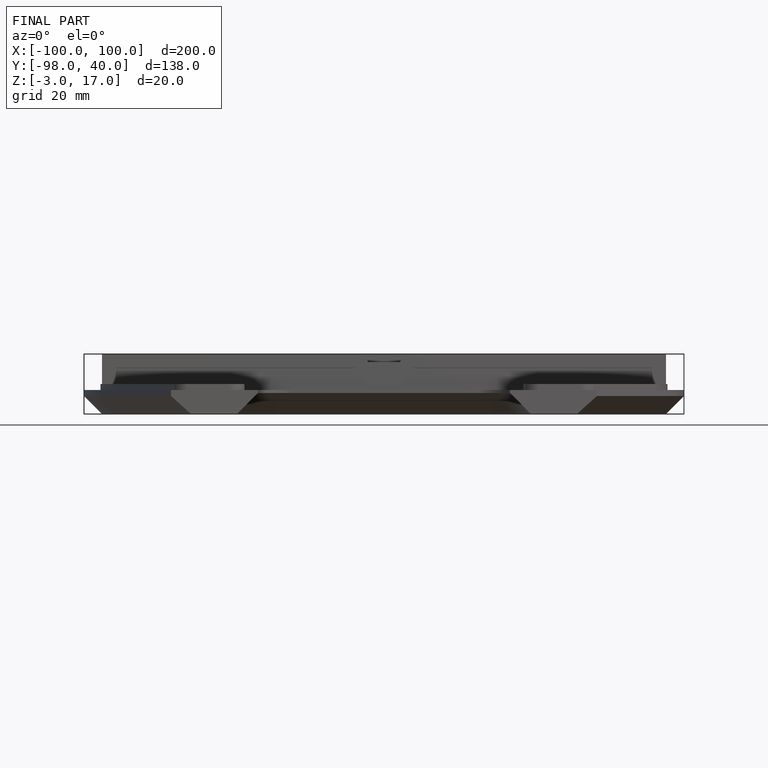
[diagram: finished part — front view with bounding-box wireframe]
